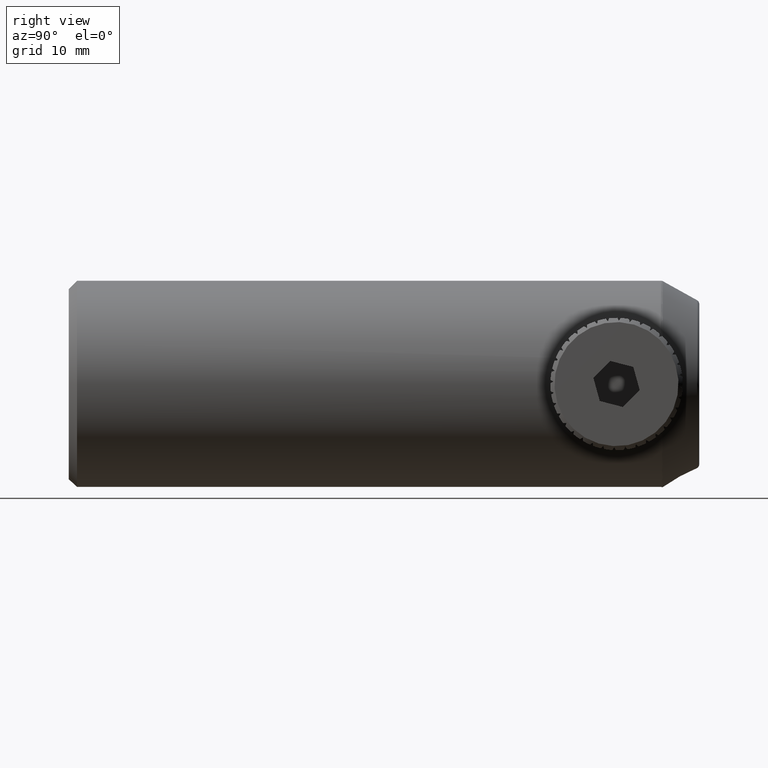
[diagram: clean part render]
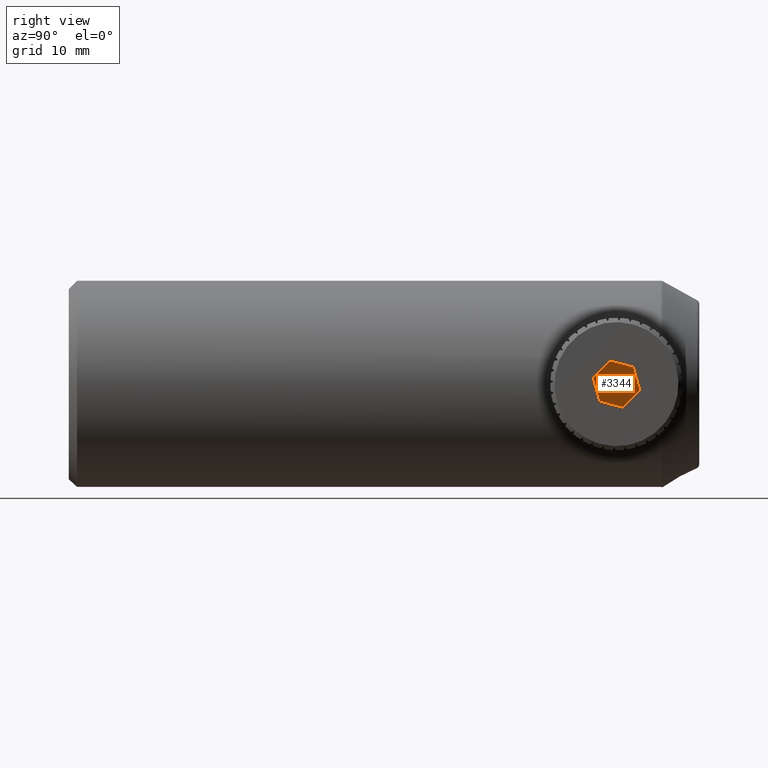
[diagram: same view with one face highlighted and labeled with its STEP entity id]
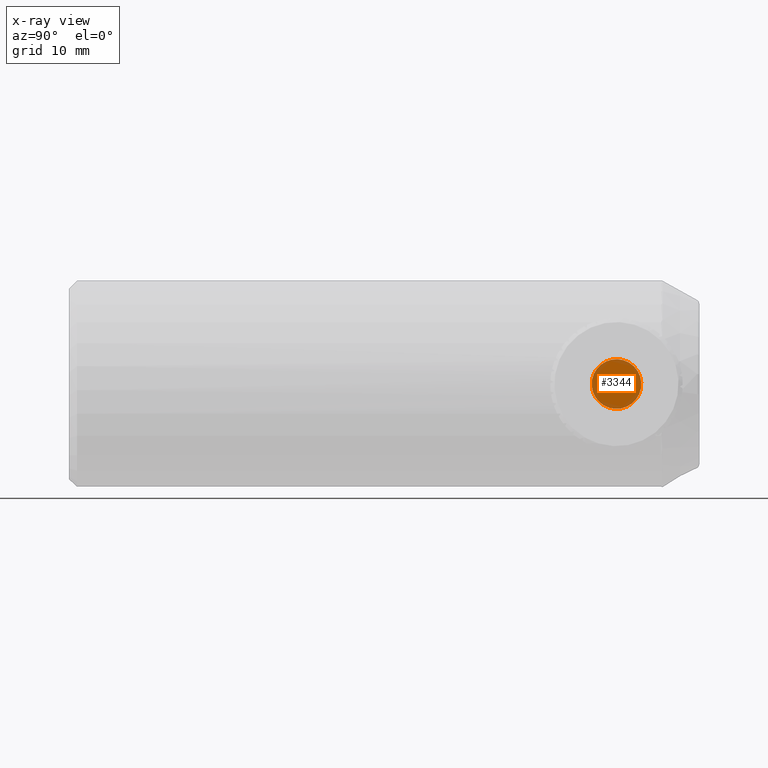
[diagram: x-ray of the same camera — body ghosted, the highlighted face saturated]
A machine part, right view. The second image highlights one B-rep face of the part: STEP entity #3344.
The next image is the same camera in x-ray: the body ghosted, the highlighted face saturated — about 23% of this face is hidden behind the body in this view.
In plain terms, the highlighted planar face has unit normal (1, 0, -0).
Its self-contained STEP definition (entity closure, byte-faithful):
#812 = CARTESIAN_POINT ( 'NONE',  ( 0.2001989641511568700, 58.16649417013110200, 2.855108790573002200 ) ) ;
#816 = PLANE ( 'NONE',  #2359 ) ;
#818 = DIRECTION ( 'NONE',  ( 1.000000000000000000, 1.997358920470991100E-017, -3.931344315526021800E-017 ) ) ;
#819 = DIRECTION ( 'NONE',  ( -6.938893903907229900E-018, 0.9517029301910031600, 0.3070204108294082900 ) ) ;
#1257 = CARTESIAN_POINT ( 'NONE',  ( 0.2001989641511568400, 61.94266419319233600, 0.9210612324882175800 ) ) ;
#1848 = ORIENTED_EDGE ( 'NONE', *, *, #2251, .F. ) ;
#2251 = EDGE_CURVE ( 'NONE', #2571, #2571, #3373, .T. ) ;
#2359 = AXIS2_PLACEMENT_3D ( 'NONE', #812, #818, #819 ) ;
#2409 = FACE_OUTER_BOUND ( 'NONE', #2817, .T. ) ;
#2571 = VERTEX_POINT ( 'NONE', #1257 ) ;
#2817 = EDGE_LOOP ( 'NONE', ( #1848 ) ) ;
#3091 = CARTESIAN_POINT ( 'NONE',  ( 0.2001989641511568700, 59.08755540261933000, -7.257042189401374200E-015 ) ) ;
#3092 = DIRECTION ( 'NONE',  ( 1.000000000000000000, 1.278229234247563200E-017, -4.163336342344335800E-017 ) ) ;
#3093 = DIRECTION ( 'NONE',  ( -9.035018104045863600E-018, 0.9517029301910032700, 0.3070204108294080600 ) ) ;
#3344 = ADVANCED_FACE ( 'NONE', ( #2409 ), #816, .F. ) ;
#3373 = CIRCLE ( 'NONE', #3739, 3.000000000000002200 ) ;
#3739 = AXIS2_PLACEMENT_3D ( 'NONE', #3091, #3092, #3093 ) ;